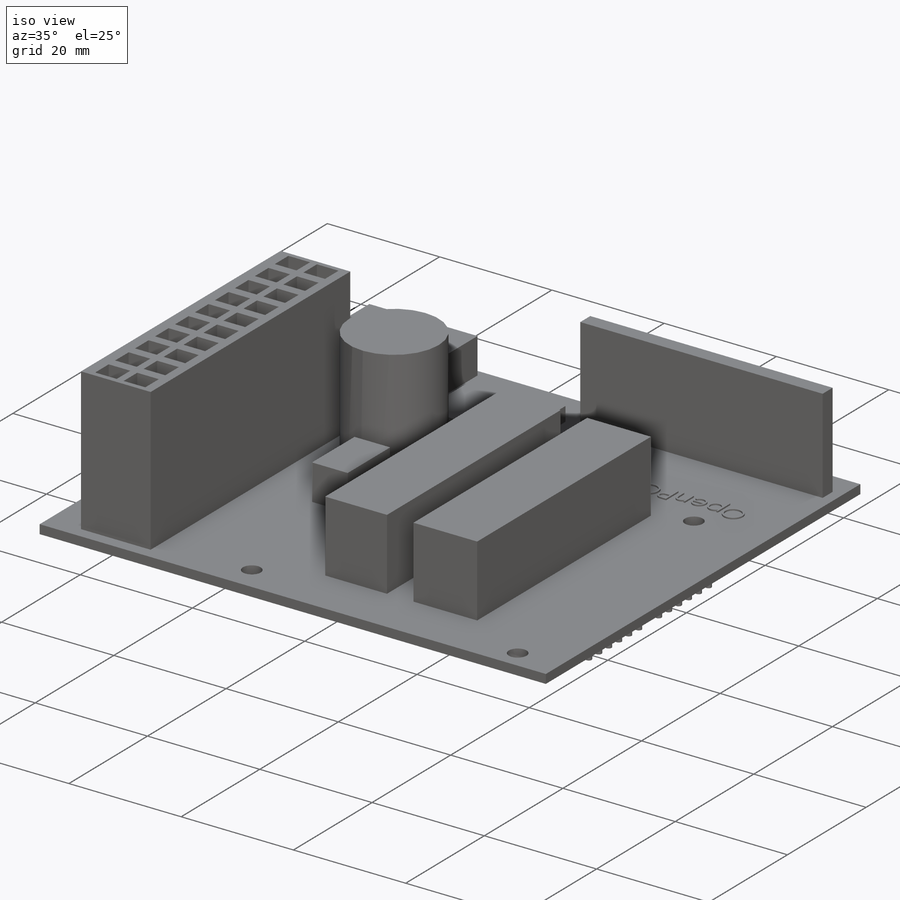
[diagram: iso view]
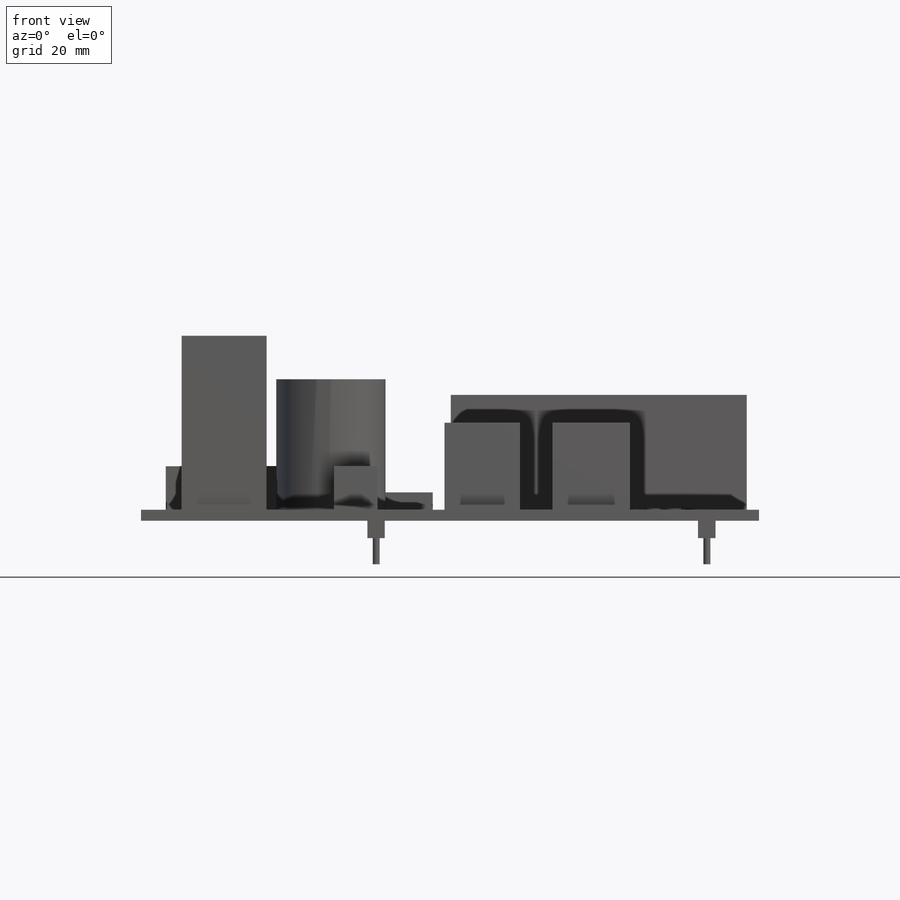
[diagram: front view]
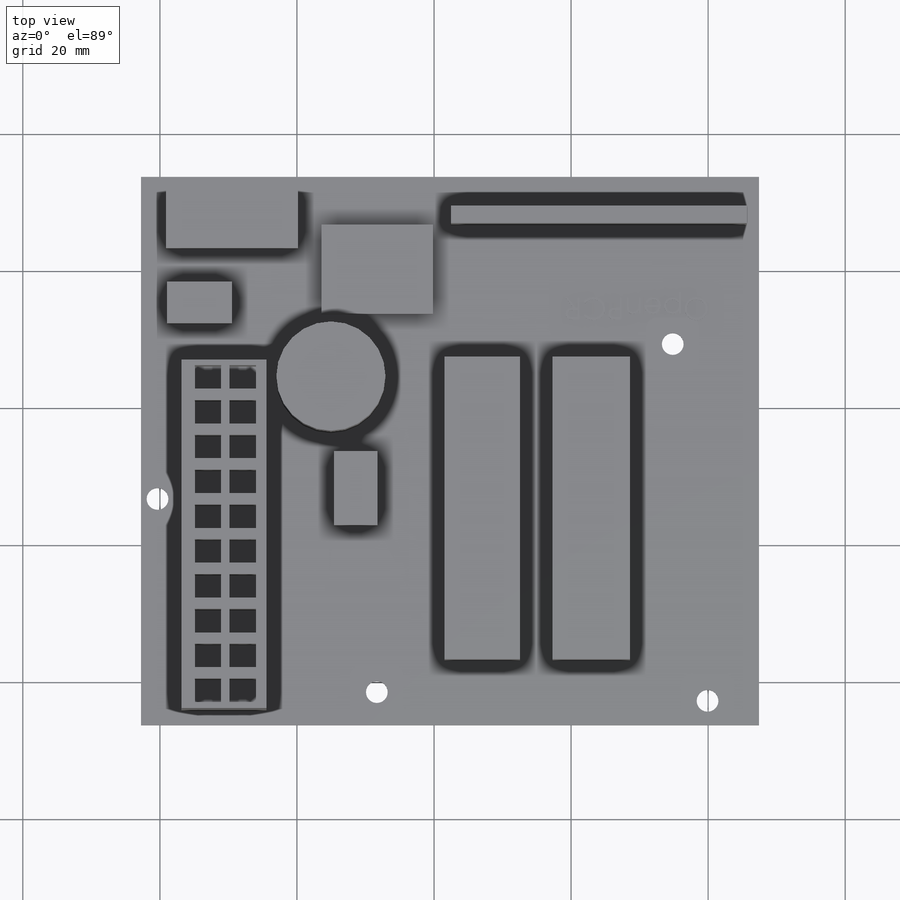
[diagram: top view]
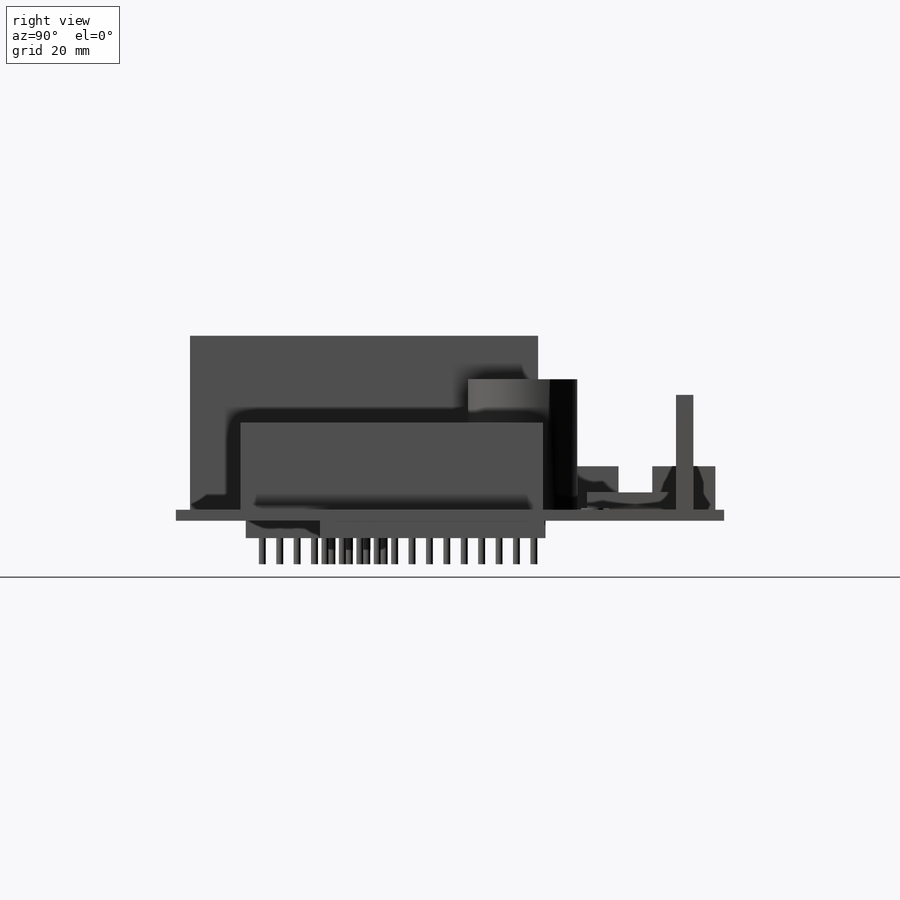
[diagram: right view]
SOLIDWORKS PART (.sldprt)
format: sldprt  version: not decoded by parser v0  size: 770,560 bytes
history: native  units: mm
features: sketch x15, extrude x13, cut_extrude x2, material x1 (+11 scaffold rows collapsed)
feature tree (42):
  scaffold x11  (default folders/planes/origin — collapsed)
  material  "Material <not specified>"
  sketch  "Sketch4"  dims[c1.D1=60.0mm c1.D2=80.01mm c2.D1=90.17mm]
  extrude  "PCB"  Depth=1.6002mm
  sketch  "Sketch18"  dims[D1=50.8mm]
  extrude  "ATX plug"  Depth=25.4mm
  sketch  "Sketch19"
  extrude  "Terminal block (peltier, lid heater, lid thermistor)"  Depth=6.35mm
  sketch  "Sketch20"  dims[D1=43.18mm D2=2.54mm]
  extrude  "LCD ribbon headers"  Depth=16.764mm
  sketch  "Sketch21"
  extrude  "2 pin block thermistor plug"  Depth=6.35mm
  sketch  "Sketch23"
  extrude  "3 pin Fan plug"  Depth=6.35mm
  sketch  "Sketch24"
  extrude  "2 pin terminal for ATX power switch"  Depth=6.35mm
  sketch  "Sketch26"
  extrude  "Boss-Extrude1"  Depth=19.05mm
  sketch  "Sketch27"
  extrude  "Boss-Extrude2"  Depth=12.7mm
  sketch  "Sketch28"
  extrude  "Boss-Extrude3"  Depth=2.54mm
  sketch  "Sketch29"  dims[D1=2.0 D2=10.0]
  cut_extrude  "Cut-Extrude1"  Depth=12.7mm
  sketch  "Sketch30"
  extrude  "Boss-Extrude4"  Depth=0.254mm
  sketch  "Sketch36"  dims[D1=~9.119694mm]
  extrude  "Boss-Extrude8"  Depth=6.35mm
  sketch  "Sketch25"  dims[D1=45.72mm D2=7.62mm D3=2.54mm D4=2.54mm D5=63.5mm D6=10.16mm D7=20.32mm D8=50.8mm]
  extrude  "Extrusion for headers"  Depth=2.54mm
  sketch  "Sketch39"  dims[D1=3.175mm D2=3.175mm D3=3.175mm D4=29.464mm D5=80.264mm D6=~7.502689mm]
  cut_extrude  "Arduino holes"  [1 undecoded]
decode coverage: 21 of 30 modeling features carry decoded parameters
note: ~ marks probable driven/reference dimensions
note: 1 parameter value undecoded
note: suppression state not decoded; provenance and decode notes live in map.json
